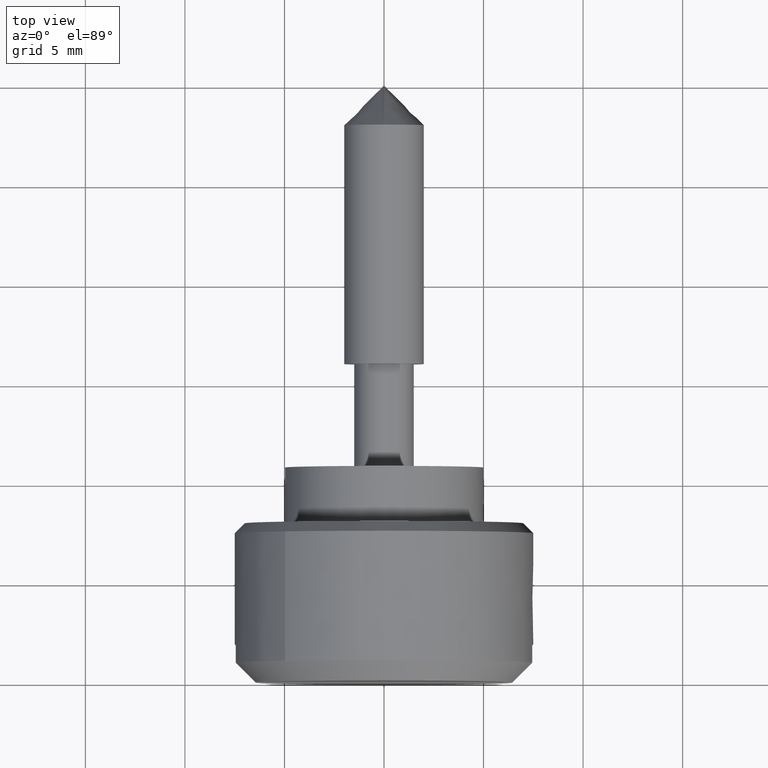
[diagram: clean part render]
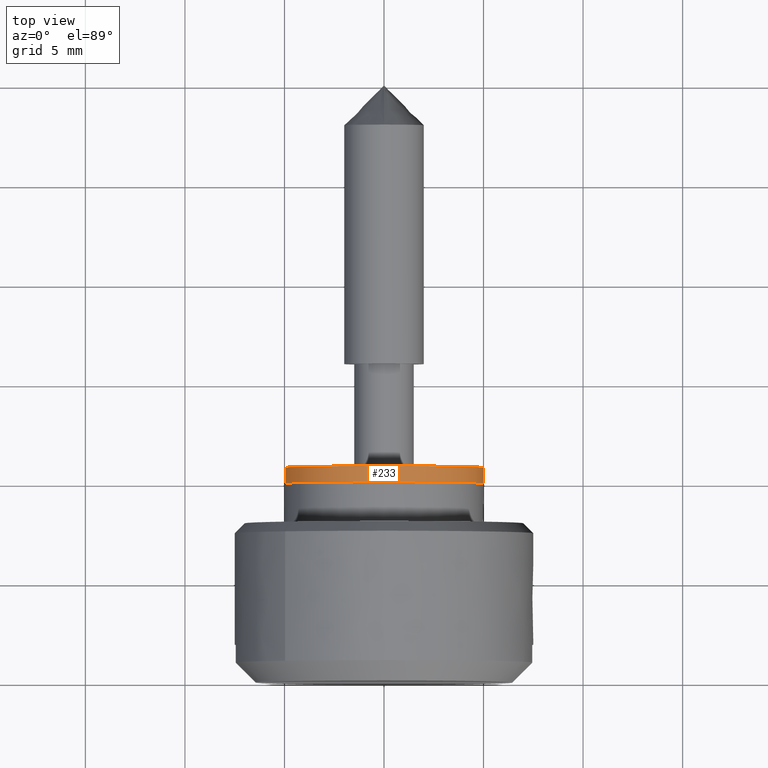
[diagram: same view with one face highlighted and labeled with its STEP entity id]
A machine part, top view. The second image highlights one B-rep face of the part: STEP entity #233.
In plain terms, the highlighted face is a freeform B-spline surface patch.
Its self-contained STEP definition (entity closure, byte-faithful):
#66=CARTESIAN_POINT('',(-4.965048661236166,-7.204694E-014,0.590162512771588));
#67=VERTEX_POINT('',#66);
#85=CARTESIAN_POINT('',(-4.965048648533877,0.800000000000023,0.590162619637772));
#86=VERTEX_POINT('',#85);
#87=CARTESIAN_POINT('',(-4.965048648533877,0.800000000000023,0.590162619637772));
#88=CARTESIAN_POINT('',(-4.965048661236166,-7.204694E-014,0.590162512771588));
#89=QUASI_UNIFORM_CURVE('',1,(#87,#88),.UNSPECIFIED.,.F.,.U.);
#90=EDGE_CURVE('',#86,#67,#89,.T.);
#109=CARTESIAN_POINT('',(4.990674121943006,0.800000000000023,-0.305240574897691));
#110=VERTEX_POINT('',#109);
#124=CARTESIAN_POINT('',(4.990674123562575,5.593269E-014,-0.305240548417611));
#125=VERTEX_POINT('',#124);
#126=CARTESIAN_POINT('',(4.990674121943006,0.800000000000023,-0.305240574897691));
#127=CARTESIAN_POINT('',(4.990674123562575,5.593269E-014,-0.305240548417611));
#128=QUASI_UNIFORM_CURVE('',1,(#126,#127),.UNSPECIFIED.,.F.,.U.);
#129=EDGE_CURVE('',#110,#125,#128,.T.);
#147=CARTESIAN_POINT('',(4.986467817813393,0.820000000000024,-0.374013039520187));
#148=CARTESIAN_POINT('',(4.988564885816879,0.820000000000024,-0.339726280739654));
#149=CARTESIAN_POINT('',(5.295916689783620,0.820000000000024,4.685431294435048));
#150=CARTESIAN_POINT('',(0.305242697674285,0.820000000000024,4.990673992109334));
#151=CARTESIAN_POINT('',(-4.407717454197504,0.820000000000023,5.278930983662638));
#152=CARTESIAN_POINT('',(-4.969220662120346,0.820000000000024,0.555063910922547));
#153=CARTESIAN_POINT('',(-4.973371264008121,0.820000000000024,0.520145336437038));
#154=CARTESIAN_POINT('',(4.986467817813393,-0.020500000000001,-0.374013039520187));
#155=CARTESIAN_POINT('',(4.988564885816879,-0.020500000000001,-0.339726280739654));
#156=CARTESIAN_POINT('',(5.295916689783620,-0.020500000000001,4.685431294435048));
#157=CARTESIAN_POINT('',(0.305242697674285,-0.020500000000001,4.990673992109334));
#158=CARTESIAN_POINT('',(-4.407717454197504,-0.020500000000001,5.278930983662638));
#159=CARTESIAN_POINT('',(-4.969220662120346,-0.020500000000001,0.555063910922547));
#160=CARTESIAN_POINT('',(-4.973371264008121,-0.020500000000001,0.520145336437038));
#168=(BOUNDED_SURFACE()B_SPLINE_SURFACE(2,1,((#147,#154),(#148,#155),(#149,#156),(#150,#157),(#151,#158),(#152,#159),(#153,#160)),.UNSPECIFIED.,.F.,.F.,.U.)B_SPLINE_SURFACE_WITH_KNOTS((3,1,2,1,3),(2,2),(0.0,0.081183402257736,8.365454649719634,16.318355047283060,16.399550929179991),(0.0,1.0),.UNSPECIFIED.)GEOMETRIC_REPRESENTATION_ITEM()RATIONAL_B_SPLINE_SURFACE(((1.005740533425624,1.005740533425624),(1.002870266712812,1.002870266712812),(0.707106781186548,0.707106781186548),(1.0,1.0),(0.718822509939086,0.718822509939086),(0.980146852095039,0.980146852095039),(0.982787903394951,0.982787903394951)))REPRESENTATION_ITEM('')SURFACE());
#169=CARTESIAN_POINT('',(0.0,0.0,5.0));
#170=VERTEX_POINT('',#169);
#171=CARTESIAN_POINT('',(0.0,0.0,5.0));
#172=CARTESIAN_POINT('',(-4.440880430487936,0.0,5.000000000000001));
#173=CARTESIAN_POINT('',(-4.965048661236166,-7.204694E-014,0.590162512771588));
#181=(BOUNDED_CURVE()B_SPLINE_CURVE(2,(#171,#172,#173),.UNSPECIFIED.,.F.,.U.)B_SPLINE_CURVE_WITH_KNOTS((3,3),(0.0,0.229562768307348),.UNSPECIFIED.)CURVE()GEOMETRIC_REPRESENTATION_ITEM()RATIONAL_B_SPLINE_CURVE((1.0,0.731050487482936,0.956027331992503))REPRESENTATION_ITEM(''));
#182=EDGE_CURVE('',#170,#67,#181,.T.);
#183=ORIENTED_EDGE('',*,*,#182,.F.);
#184=CARTESIAN_POINT('',(4.990674123562576,5.593269E-014,-0.305240548417611));
#185=CARTESIAN_POINT('',(5.0,0.0,-0.152762738851489));
#186=CARTESIAN_POINT('',(5.0,0.0,0.0));
#187=CARTESIAN_POINT('',(5.000000000000001,0.0,5.000000000000001));
#188=CARTESIAN_POINT('',(0.0,0.0,5.0));
#196=(BOUNDED_CURVE()B_SPLINE_CURVE(2,(#184,#185,#186,#187,#188),.UNSPECIFIED.,.F.,.U.)B_SPLINE_CURVE_WITH_KNOTS((3,2,3),(0.739333036550040,0.750000000000000,1.0),.UNSPECIFIED.)CURVE()GEOMETRIC_REPRESENTATION_ITEM()RATIONAL_B_SPLINE_CURVE((0.976072200929596,0.987502874960703,1.0,0.707106781186548,1.0))REPRESENTATION_ITEM(''));
#197=EDGE_CURVE('',#125,#170,#196,.T.);
#198=ORIENTED_EDGE('',*,*,#197,.F.);
#199=ORIENTED_EDGE('',*,*,#129,.F.);
#200=CARTESIAN_POINT('',(0.0,0.800000000000023,5.0));
#201=VERTEX_POINT('',#200);
#202=CARTESIAN_POINT('',(4.990674121943006,0.800000000000023,-0.305240574897691));
#203=CARTESIAN_POINT('',(5.0,0.800000000000023,-0.152762752128653));
#204=CARTESIAN_POINT('',(5.0,0.800000000000023,0.0));
#205=CARTESIAN_POINT('',(5.000000000000001,0.800000000000023,5.000000000000001));
#206=CARTESIAN_POINT('',(0.0,0.800000000000023,5.0));
#214=(BOUNDED_CURVE()B_SPLINE_CURVE(2,(#202,#203,#204,#205,#206),.UNSPECIFIED.,.F.,.U.)B_SPLINE_CURVE_WITH_KNOTS((3,2,3),(0.739333035634522,0.750000000000000,1.0),.UNSPECIFIED.)CURVE()GEOMETRIC_REPRESENTATION_ITEM()RATIONAL_B_SPLINE_CURVE((0.976072198967465,0.987502873888107,1.0,0.707106781186548,1.0))REPRESENTATION_ITEM(''));
#215=EDGE_CURVE('',#110,#201,#214,.T.);
#216=ORIENTED_EDGE('',*,*,#215,.T.);
#217=CARTESIAN_POINT('',(0.0,0.800000000000023,5.0));
#218=CARTESIAN_POINT('',(-4.440880334230948,0.800000000000023,5.0));
#219=CARTESIAN_POINT('',(-4.965048648533878,0.800000000000023,0.590162619637772));
#227=(BOUNDED_CURVE()B_SPLINE_CURVE(2,(#217,#218,#219),.UNSPECIFIED.,.F.,.U.)B_SPLINE_CURVE_WITH_KNOTS((3,3),(0.0,0.229562764669772),.UNSPECIFIED.)CURVE()GEOMETRIC_REPRESENTATION_ITEM()RATIONAL_B_SPLINE_CURVE((1.0,0.731050491744621,0.956027324862686))REPRESENTATION_ITEM(''));
#228=EDGE_CURVE('',#201,#86,#227,.T.);
#229=ORIENTED_EDGE('',*,*,#228,.T.);
#230=ORIENTED_EDGE('',*,*,#90,.T.);
#231=EDGE_LOOP('',(#183,#198,#199,#216,#229,#230));
#232=FACE_OUTER_BOUND('',#231,.T.);
#233=ADVANCED_FACE('',(#232),#168,.T.);